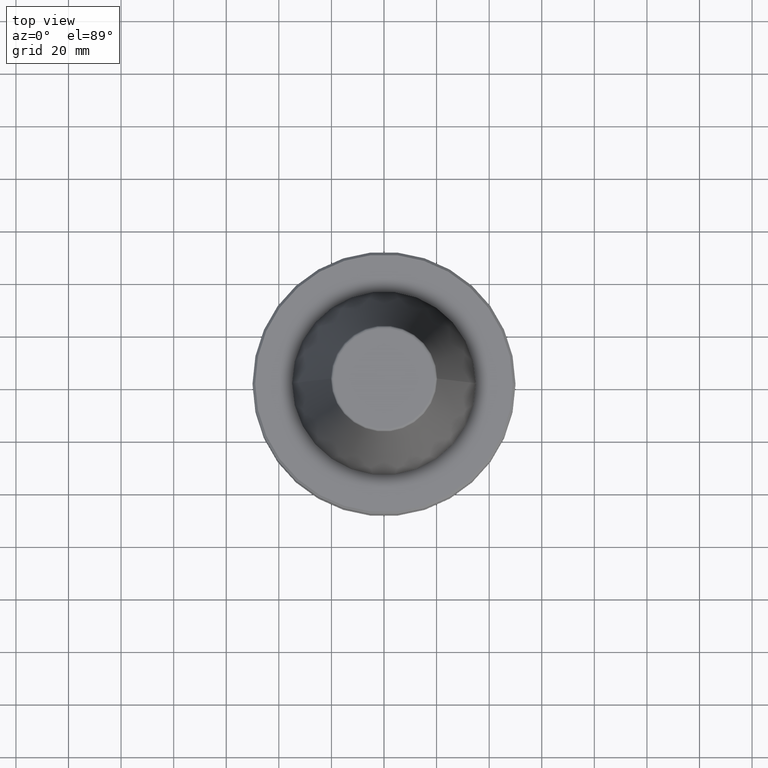
[diagram: clean part render]
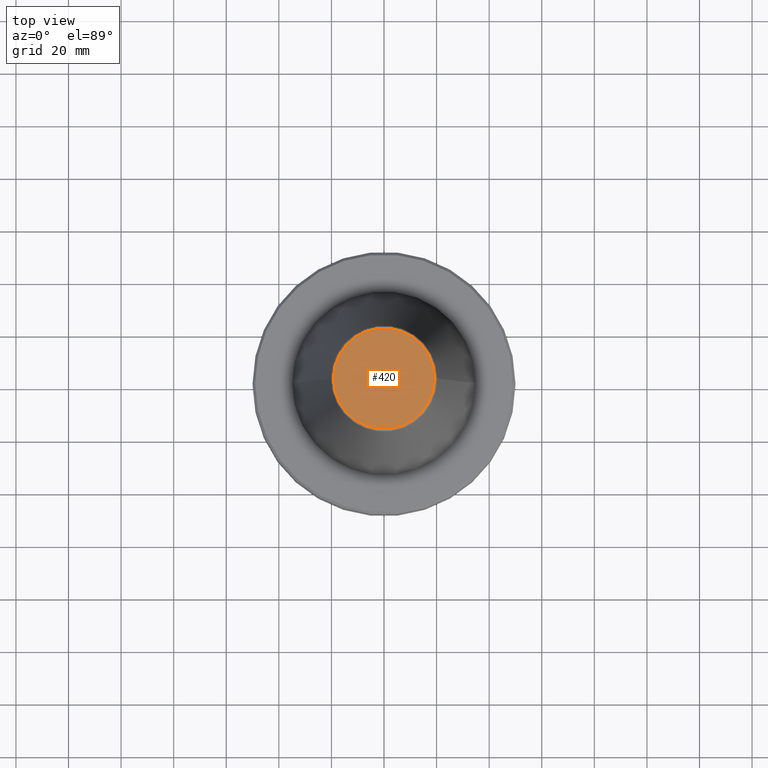
[diagram: same view with one face highlighted and labeled with its STEP entity id]
A machine part, top view. The second image highlights one B-rep face of the part: STEP entity #420.
In plain terms, the highlighted planar face has unit normal (0, 0, -1).
Its self-contained STEP definition (entity closure, byte-faithful):
#41 = CARTESIAN_POINT ( 'NONE',  ( 19.21428326503027200, 0.0000000000000000000, 101.7999999999999800 ) ) ;
#100 = VERTEX_POINT ( 'NONE', #442 ) ;
#116 = DIRECTION ( 'NONE',  ( 0.0000000000000000000, 0.0000000000000000000, -1.000000000000000000 ) ) ;
#195 = CIRCLE ( 'NONE', #342, 19.21428326503027200 ) ;
#219 = DIRECTION ( 'NONE',  ( 1.000000000000000000, 0.0000000000000000000, 0.0000000000000000000 ) ) ;
#259 = ORIENTED_EDGE ( 'NONE', *, *, #560, .T. ) ;
#342 = AXIS2_PLACEMENT_3D ( 'NONE', #606, #964, #219 ) ;
#394 = AXIS2_PLACEMENT_3D ( 'NONE', #767, #116, #687 ) ;
#420 = ADVANCED_FACE ( 'NONE', ( #582 ), #908, .F. ) ;
#442 = CARTESIAN_POINT ( 'NONE',  ( -19.21428326503027200, 2.413662457824437800E-015, 101.7999999999999800 ) ) ;
#453 = AXIS2_PLACEMENT_3D ( 'NONE', #465, #850, #639 ) ;
#465 = CARTESIAN_POINT ( 'NONE',  ( 0.0000000000000000000, 0.0000000000000000000, 101.7999999999999800 ) ) ;
#560 = EDGE_CURVE ( 'NONE', #100, #871, #195, .T. ) ;
#582 = FACE_OUTER_BOUND ( 'NONE', #914, .T. ) ;
#606 = CARTESIAN_POINT ( 'NONE',  ( 0.0000000000000000000, 0.0000000000000000000, 101.7999999999999800 ) ) ;
#639 = DIRECTION ( 'NONE',  ( 1.000000000000000000, 0.0000000000000000000, 0.0000000000000000000 ) ) ;
#687 = DIRECTION ( 'NONE',  ( -1.000000000000000000, 0.0000000000000000000, -0.0000000000000000000 ) ) ;
#705 = ORIENTED_EDGE ( 'NONE', *, *, #912, .T. ) ;
#767 = CARTESIAN_POINT ( 'NONE',  ( 0.0000000000000000000, 0.0000000000000000000, 101.8000000000000000 ) ) ;
#850 = DIRECTION ( 'NONE',  ( -0.0000000000000000000, -0.0000000000000000000, 1.000000000000000000 ) ) ;
#871 = VERTEX_POINT ( 'NONE', #41 ) ;
#885 = CIRCLE ( 'NONE', #453, 19.21428326503027200 ) ;
#908 = PLANE ( 'NONE',  #394 ) ;
#912 = EDGE_CURVE ( 'NONE', #871, #100, #885, .T. ) ;
#914 = EDGE_LOOP ( 'NONE', ( #705, #259 ) ) ;
#964 = DIRECTION ( 'NONE',  ( -0.0000000000000000000, -0.0000000000000000000, 1.000000000000000000 ) ) ;